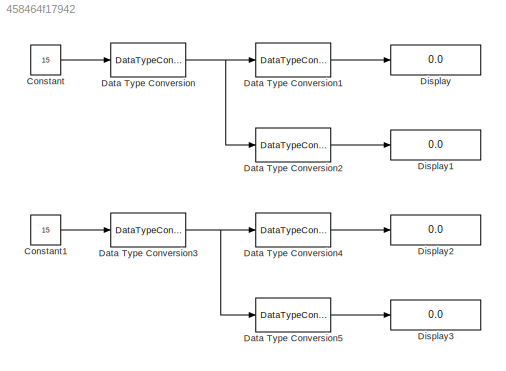
MODEL slx_458464f17942
KIND model
BLOCK [Constant] Constant
  Value = 15
BLOCK [Constant] Constant1
  Value = 15
BLOCK [DataTypeConversion] Data Type Conversion
  OutDataTypeStr = fixdt(1,8,2^-2,0)
  RndMeth = Floor
  SaturateOnIntegerOverflow = off
BLOCK [DataTypeConversion] Data Type Conversion1
  RndMeth = Floor
  SaturateOnIntegerOverflow = off
BLOCK [DataTypeConversion] Data Type Conversion2
  ConvertRealWorld = Stored Integer (SI)
  RndMeth = Floor
  SaturateOnIntegerOverflow = off
BLOCK [DataTypeConversion] Data Type Conversion3
  ConvertRealWorld = Stored Integer (SI)
  OutDataTypeStr = fixdt(1,8,2^-2,0)
  RndMeth = Floor
  SaturateOnIntegerOverflow = off
BLOCK [DataTypeConversion] Data Type Conversion4
  RndMeth = Floor
  SaturateOnIntegerOverflow = off
BLOCK [DataTypeConversion] Data Type Conversion5
  ConvertRealWorld = Stored Integer (SI)
  RndMeth = Floor
  SaturateOnIntegerOverflow = off
BLOCK [Display] Display
  Decimation = 1
  Ports = [1]
BLOCK [Display] Display1
  Decimation = 1
  Ports = [1]
BLOCK [Display] Display2
  Decimation = 1
  Ports = [1]
BLOCK [Display] Display3
  Decimation = 1
  Ports = [1]
LINE Constant1:1 -> Data Type Conversion3:1
LINE Constant:1 -> Data Type Conversion:1
LINE Data Type Conversion1:1 -> Display:1
LINE Data Type Conversion2:1 -> Display1:1
NET Data Type Conversion3:1 -> Data Type Conversion4:1, Data Type Conversion5:1
LINE Data Type Conversion4:1 -> Display2:1
LINE Data Type Conversion5:1 -> Display3:1
NET Data Type Conversion:1 -> Data Type Conversion1:1, Data Type Conversion2:1
note: NET lines group one-source signal fan-out (src -> all destinations, sorted); 1:1 wires keep LINE
